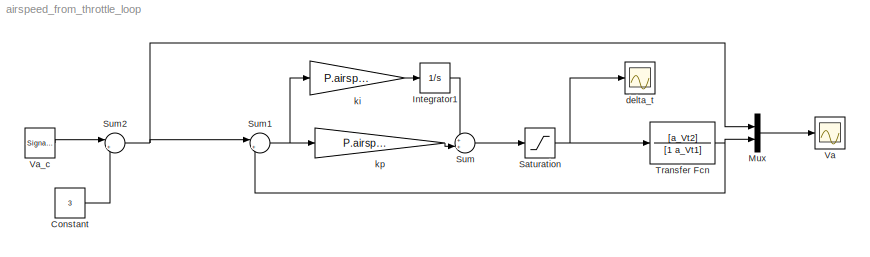
MODEL airspeed_from_throttle_loop
KIND model
BLOCK [Constant] Constant
  OutDataType = fixdt(1, 16)
  OutScaling = 2^0
  SID = 53
  Value = 3
BLOCK [Integrator] Integrator1
  Ports = [1, 1]
  SID = 10
BLOCK [Mux] Mux
  DisplayOption = bar
  Inputs = 2
  Ports = [2, 1]
  SID = 12
BLOCK [Saturate] Saturation
  LowerLimit = 0
  OutDataType = fixdt(1, 16)
  OutScaling = 2^0
  SID = 4
  UpperLimit = 1
BLOCK [Sum] Sum
  IconShape = round
  InputSameDT = off
  Inputs = ++|
  OutDataType = fixdt(1, 16)
  OutDataTypeMode = Inherit via internal rule
  OutDataTypeStr = Inherit: Inherit via internal rule
  OutScaling = 2^0
  Ports = [2, 1]
  SID = 5
  SaturateOnIntegerOverflow = off
BLOCK [Sum] Sum1
  IconShape = round
  InputSameDT = off
  Inputs = |+-
  OutDataType = fixdt(1, 16)
  OutDataTypeMode = Inherit via internal rule
  OutDataTypeStr = Inherit: Inherit via internal rule
  OutScaling = 2^0
  Ports = [2, 1]
  SID = 9
  SaturateOnIntegerOverflow = off
BLOCK [Sum] Sum2
  IconShape = round
  InputSameDT = off
  Inputs = |++
  OutDataType = fixdt(1, 16)
  OutDataTypeMode = Inherit via internal rule
  OutDataTypeStr = Inherit: Inherit via internal rule
  OutScaling = 2^0
  Ports = [2, 1]
  SID = 54
  SaturateOnIntegerOverflow = off
BLOCK [TransferFcn] Transfer Fcn
  Denominator = [1 a_Vt1]
  Numerator = [a_Vt2]
  SID = 34
BLOCK [Scope] Va
  DataFormat = StructureWithTime
  Floating = off
  NumInputPorts = 1
  Ports = [1]
  SID = 13
  SampleTime = 0
  TimeRange = 100
  YMax = 3
  YMin = -3
BLOCK [SignalGenerator] Va_c
  Amplitude = 2
  Frequency = .02
  Ports = [0, 1]
  SID = 11
  WaveForm = square
BLOCK [Scope] delta_t
  DataFormat = StructureWithTime
  Floating = off
  NumInputPorts = 1
  Ports = [1]
  SID = 52
  SampleTime = 0
  SaveName = ScopeData1
  TimeRange = 100
  YMax = 3
  YMin = -3
BLOCK [Gain] ki
  Gain = P.airspeed_throttle_ki
  OutDataType = fixdt(1, 16)
  OutDataTypeMode = Inherit via internal rule
  OutDataTypeStr = Inherit: Inherit via internal rule
  OutScaling = 2^0
  ParamDataTypeStr = Inherit: Inherit via internal rule
  ParameterDataType = fixdt(1, 16)
  ParameterDataTypeMode = Inherit via internal rule
  ParameterScaling = 2^0
  SID = 7
  SaturateOnIntegerOverflow = off
BLOCK [Gain] kp
  Gain = P.airspeed_throttle_kp
  OutDataType = fixdt(1, 16)
  OutDataTypeMode = Inherit via internal rule
  OutDataTypeStr = Inherit: Inherit via internal rule
  OutScaling = 2^0
  ParamDataTypeStr = Inherit: Inherit via internal rule
  ParameterDataType = fixdt(1, 16)
  ParameterDataTypeMode = Inherit via internal rule
  ParameterScaling = 2^0
  SID = 8
  SaturateOnIntegerOverflow = off
LINE Constant:1 -> Sum2:2
LINE Integrator1:1 -> Sum:1
LINE Mux:1 -> Va:1
NET Saturation:1 -> Transfer Fcn:1, delta_t:1
NET Sum1:1 -> ki:1, kp:1
NET Sum2:1 -> Mux:1, Sum1:1
LINE Sum:1 -> Saturation:1
NET Transfer Fcn:1 -> Mux:2, Sum1:2
LINE Va_c:1 -> Sum2:1
LINE ki:1 -> Integrator1:1
LINE kp:1 -> Sum:2
note: NET lines group one-source signal fan-out (src -> all destinations, sorted); 1:1 wires keep LINE
